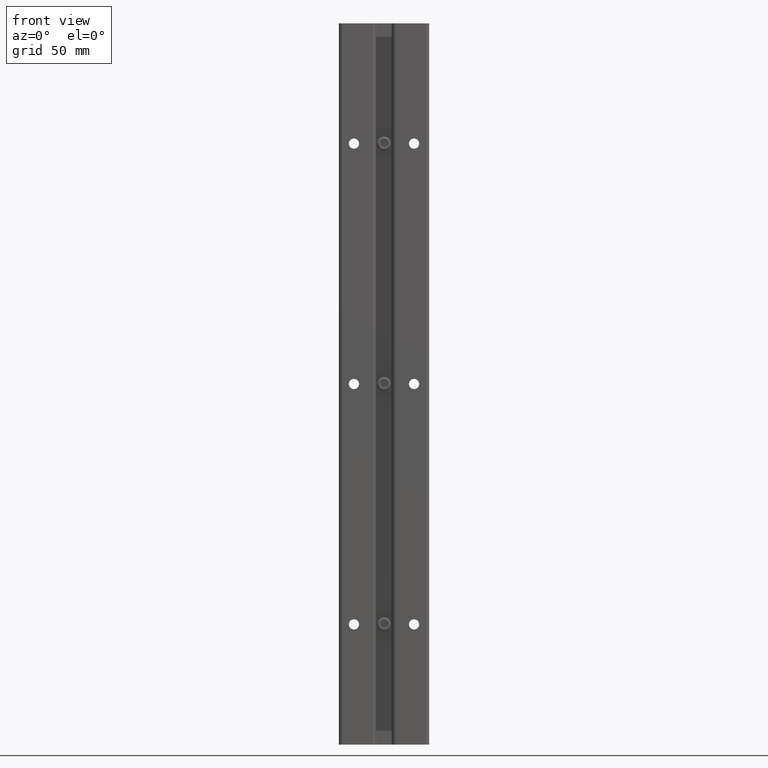
[diagram: clean part render]
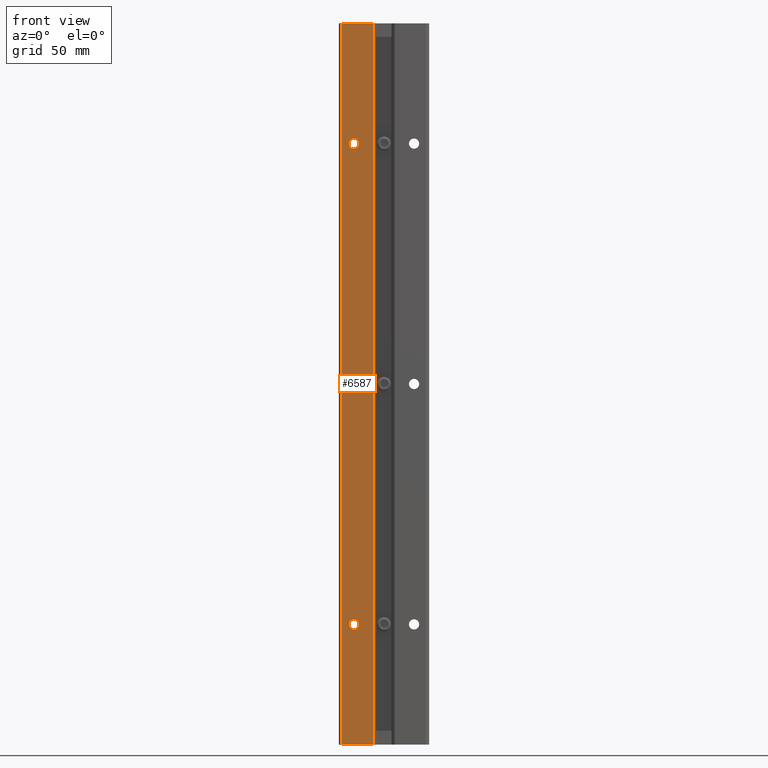
[diagram: same view with one face highlighted and labeled with its STEP entity id]
A machine part, front view. The second image highlights one B-rep face of the part: STEP entity #6587.
In plain terms, the highlighted planar face has unit normal (0, 1, 0).
Its self-contained STEP definition (entity closure, byte-faithful):
#41 = CIRCLE ( 'NONE', #799, 0.08500000000000086653 ) ;
#84 = VECTOR ( 'NONE', #4532, 39.37007874015748143 ) ;
#97 = EDGE_CURVE ( 'NONE', #3405, #7506, #7473, .T. ) ;
#111 = DIRECTION ( 'NONE',  ( 0.000000000000000000, 1.000000000000000000, 0.000000000000000000 ) ) ;
#180 = EDGE_CURVE ( 'NONE', #6661, #2705, #41, .T. ) ;
#205 = CIRCLE ( 'NONE', #2626, 0.08500000000000086653 ) ;
#321 = CIRCLE ( 'NONE', #1334, 0.08499999999999977018 ) ;
#525 = CARTESIAN_POINT ( 'NONE',  ( -0.5000000000000000000, 0.000000000000000000, -10.00000000000000000 ) ) ;
#614 = DIRECTION ( 'NONE',  ( 0.000000000000000000, 1.000000000000000000, 0.000000000000000000 ) ) ;
#799 = AXIS2_PLACEMENT_3D ( 'NONE', #6205, #3980, #869 ) ;
#869 = DIRECTION ( 'NONE',  ( 0.000000000000000000, 0.000000000000000000, 1.000000000000000000 ) ) ;
#912 = ORIENTED_EDGE ( 'NONE', *, *, #3747, .T. ) ;
#956 = PLANE ( 'NONE',  #1855 ) ;
#1023 = VERTEX_POINT ( 'NONE', #2192 ) ;
#1134 = ORIENTED_EDGE ( 'NONE', *, *, #97, .T. ) ;
#1222 = DIRECTION ( 'NONE',  ( 0.000000000000000000, 1.000000000000000000, 0.000000000000000000 ) ) ;
#1247 = CARTESIAN_POINT ( 'NONE',  ( -2.500000000000000000, 0.000000000000000000, 0.000000000000000000 ) ) ;
#1334 = AXIS2_PLACEMENT_3D ( 'NONE', #6019, #1222, #1875 ) ;
#1384 = VERTEX_POINT ( 'NONE', #2531 ) ;
#1428 = CARTESIAN_POINT ( 'NONE',  ( -0.5000000000000000000, 0.000000000000000000, -2.000000000000000000 ) ) ;
#1439 = CARTESIAN_POINT ( 'NONE',  ( -0.5000000000000000000, 0.000000000000000000, -10.08500000000000085 ) ) ;
#1638 = DIRECTION ( 'NONE',  ( 0.000000000000000000, 0.000000000000000000, 1.000000000000000000 ) ) ;
#1767 = DIRECTION ( 'NONE',  ( 0.000000000000000000, -0.000000000000000000, 1.000000000000000000 ) ) ;
#1855 = AXIS2_PLACEMENT_3D ( 'NONE', #6711, #614, #1767 ) ;
#1875 = DIRECTION ( 'NONE',  ( 0.000000000000000000, 0.000000000000000000, 1.000000000000000000 ) ) ;
#1936 = EDGE_CURVE ( 'NONE', #6203, #3573, #6384, .T. ) ;
#2007 = EDGE_LOOP ( 'NONE', ( #5895, #6182 ) ) ;
#2158 = ORIENTED_EDGE ( 'NONE', *, *, #6083, .F. ) ;
#2192 = CARTESIAN_POINT ( 'NONE',  ( -0.1844203811574925966, 0.000000000000000000, 0.000000000000000000 ) ) ;
#2234 = EDGE_LOOP ( 'NONE', ( #5896, #2158, #4309, #3733 ) ) ;
#2274 = VECTOR ( 'NONE', #3631, 39.37007874015748143 ) ;
#2332 = DIRECTION ( 'NONE',  ( 0.000000000000000000, 1.000000000000000000, 0.000000000000000000 ) ) ;
#2334 = DIRECTION ( 'NONE',  ( 0.000000000000000000, 0.000000000000000000, 1.000000000000000000 ) ) ;
#2448 = CARTESIAN_POINT ( 'NONE',  ( -0.7005796188425079674, -8.537024980200822558E-17, 0.000000000000000000 ) ) ;
#2473 = DIRECTION ( 'NONE',  ( 0.000000000000000000, 0.000000000000000000, 1.000000000000000000 ) ) ;
#2531 = CARTESIAN_POINT ( 'NONE',  ( -0.5000000000000000000, 0.000000000000000000, -6.084999999999999076 ) ) ;
#2532 = CARTESIAN_POINT ( 'NONE',  ( -0.1844203811574926521, 0.000000000000000000, -12.00000000000000178 ) ) ;
#2626 = AXIS2_PLACEMENT_3D ( 'NONE', #525, #4677, #2334 ) ;
#2705 = VERTEX_POINT ( 'NONE', #1439 ) ;
#2753 = CARTESIAN_POINT ( 'NONE',  ( -0.7005796188425085225, 0.000000000000000000, -12.00000000000000178 ) ) ;
#2946 = FACE_BOUND ( 'NONE', #6284, .T. ) ;
#2949 = CARTESIAN_POINT ( 'NONE',  ( -0.5000000000000000000, 0.000000000000000000, -5.999999999999999112 ) ) ;
#3021 = ORIENTED_EDGE ( 'NONE', *, *, #7077, .T. ) ;
#3405 = VERTEX_POINT ( 'NONE', #4327 ) ;
#3540 = DIRECTION ( 'NONE',  ( 0.000000000000000000, 0.000000000000000000, 1.000000000000000000 ) ) ;
#3573 = VERTEX_POINT ( 'NONE', #7234 ) ;
#3631 = DIRECTION ( 'NONE',  ( 1.000000000000000000, 0.000000000000000000, 0.000000000000000000 ) ) ;
#3648 = VERTEX_POINT ( 'NONE', #2448 ) ;
#3687 = CIRCLE ( 'NONE', #4432, 0.08500000000000004774 ) ;
#3733 = ORIENTED_EDGE ( 'NONE', *, *, #6178, .T. ) ;
#3747 = EDGE_CURVE ( 'NONE', #7506, #3405, #3687, .T. ) ;
#3980 = DIRECTION ( 'NONE',  ( 0.000000000000000000, 1.000000000000000000, 0.000000000000000000 ) ) ;
#3996 = AXIS2_PLACEMENT_3D ( 'NONE', #2949, #2332, #1638 ) ;
#4071 = AXIS2_PLACEMENT_3D ( 'NONE', #6788, #111, #2473 ) ;
#4116 = CIRCLE ( 'NONE', #3996, 0.08499999999999977018 ) ;
#4309 = ORIENTED_EDGE ( 'NONE', *, *, #1936, .F. ) ;
#4327 = CARTESIAN_POINT ( 'NONE',  ( -0.5000000000000000000, 0.000000000000000000, -1.915000000000000036 ) ) ;
#4375 = VECTOR ( 'NONE', #3540, 39.37007874015748143 ) ;
#4432 = AXIS2_PLACEMENT_3D ( 'NONE', #1428, #5131, #6298 ) ;
#4532 = DIRECTION ( 'NONE',  ( 0.000000000000000000, 0.000000000000000000, 1.000000000000000000 ) ) ;
#4645 = CARTESIAN_POINT ( 'NONE',  ( -0.1844203811574926521, 0.000000000000000000, -13.75252057657289484 ) ) ;
#4672 = FACE_BOUND ( 'NONE', #2007, .T. ) ;
#4677 = DIRECTION ( 'NONE',  ( 0.000000000000000000, 1.000000000000000000, 0.000000000000000000 ) ) ;
#4800 = LINE ( 'NONE', #1247, #2274 ) ;
#4822 = VERTEX_POINT ( 'NONE', #6994 ) ;
#4995 = CARTESIAN_POINT ( 'NONE',  ( -0.7005796188425085225, 0.000000000000000000, -13.75252057657289484 ) ) ;
#5131 = DIRECTION ( 'NONE',  ( 0.000000000000000000, 1.000000000000000000, 0.000000000000000000 ) ) ;
#5196 = DIRECTION ( 'NONE',  ( -1.000000000000000000, 0.000000000000000000, 0.000000000000000000 ) ) ;
#5288 = LINE ( 'NONE', #4645, #4375 ) ;
#5611 = LINE ( 'NONE', #4995, #84 ) ;
#5751 = FACE_BOUND ( 'NONE', #6713, .T. ) ;
#5763 = EDGE_CURVE ( 'NONE', #4822, #1384, #321, .T. ) ;
#5811 = ORIENTED_EDGE ( 'NONE', *, *, #180, .T. ) ;
#5895 = ORIENTED_EDGE ( 'NONE', *, *, #7190, .T. ) ;
#5896 = ORIENTED_EDGE ( 'NONE', *, *, #7525, .F. ) ;
#5987 = CARTESIAN_POINT ( 'NONE',  ( -0.5000000000000000000, 0.000000000000000000, -9.914999999999999147 ) ) ;
#6006 = CARTESIAN_POINT ( 'NONE',  ( -0.5000000000000000000, 0.000000000000000000, -2.084999999999999964 ) ) ;
#6019 = CARTESIAN_POINT ( 'NONE',  ( -0.5000000000000000000, 0.000000000000000000, -5.999999999999999112 ) ) ;
#6083 = EDGE_CURVE ( 'NONE', #3573, #3648, #5611, .T. ) ;
#6178 = EDGE_CURVE ( 'NONE', #6203, #1023, #5288, .T. ) ;
#6182 = ORIENTED_EDGE ( 'NONE', *, *, #5763, .T. ) ;
#6203 = VERTEX_POINT ( 'NONE', #2532 ) ;
#6205 = CARTESIAN_POINT ( 'NONE',  ( -0.5000000000000000000, 0.000000000000000000, -10.00000000000000000 ) ) ;
#6284 = EDGE_LOOP ( 'NONE', ( #912, #1134 ) ) ;
#6298 = DIRECTION ( 'NONE',  ( 0.000000000000000000, 0.000000000000000000, 1.000000000000000000 ) ) ;
#6384 = LINE ( 'NONE', #2753, #6634 ) ;
#6419 = FACE_OUTER_BOUND ( 'NONE', #2234, .T. ) ;
#6587 = ADVANCED_FACE ( 'NONE', ( #5751, #4672, #2946, #6419 ), #956, .F. ) ;
#6634 = VECTOR ( 'NONE', #5196, 39.37007874015748143 ) ;
#6661 = VERTEX_POINT ( 'NONE', #5987 ) ;
#6711 = CARTESIAN_POINT ( 'NONE',  ( -2.500000000000000000, 0.000000000000000000, 0.1250000000000000000 ) ) ;
#6713 = EDGE_LOOP ( 'NONE', ( #3021, #5811 ) ) ;
#6788 = CARTESIAN_POINT ( 'NONE',  ( -0.5000000000000000000, 0.000000000000000000, -2.000000000000000000 ) ) ;
#6994 = CARTESIAN_POINT ( 'NONE',  ( -0.5000000000000000000, 0.000000000000000000, -5.915000000000000036 ) ) ;
#7077 = EDGE_CURVE ( 'NONE', #2705, #6661, #205, .T. ) ;
#7190 = EDGE_CURVE ( 'NONE', #1384, #4822, #4116, .T. ) ;
#7234 = CARTESIAN_POINT ( 'NONE',  ( -0.7005796188425085225, -2.027543432797695280E-17, -12.00000000000000178 ) ) ;
#7473 = CIRCLE ( 'NONE', #4071, 0.08500000000000004774 ) ;
#7506 = VERTEX_POINT ( 'NONE', #6006 ) ;
#7525 = EDGE_CURVE ( 'NONE', #3648, #1023, #4800, .T. ) ;